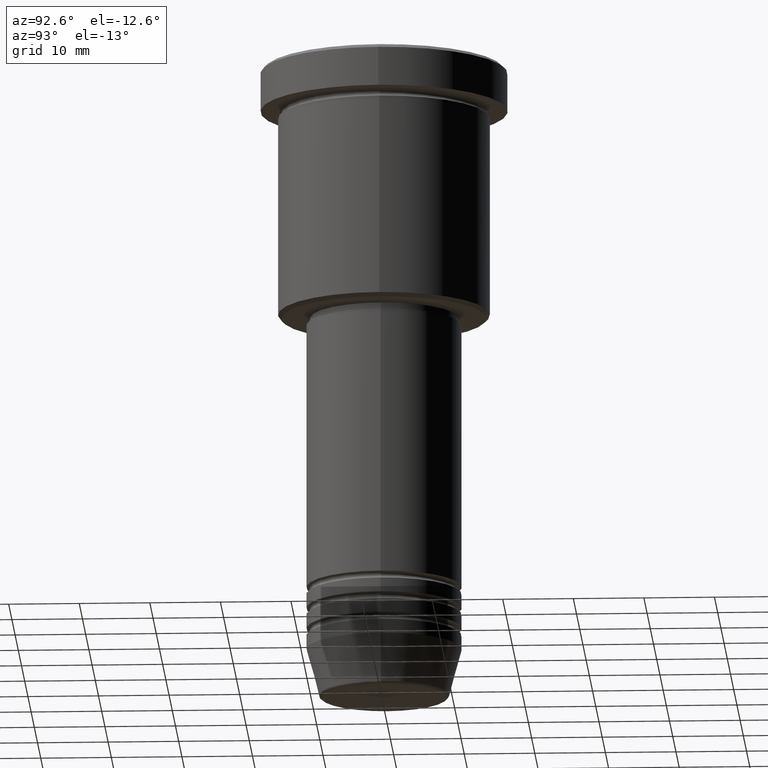
[diagram: clean part render]
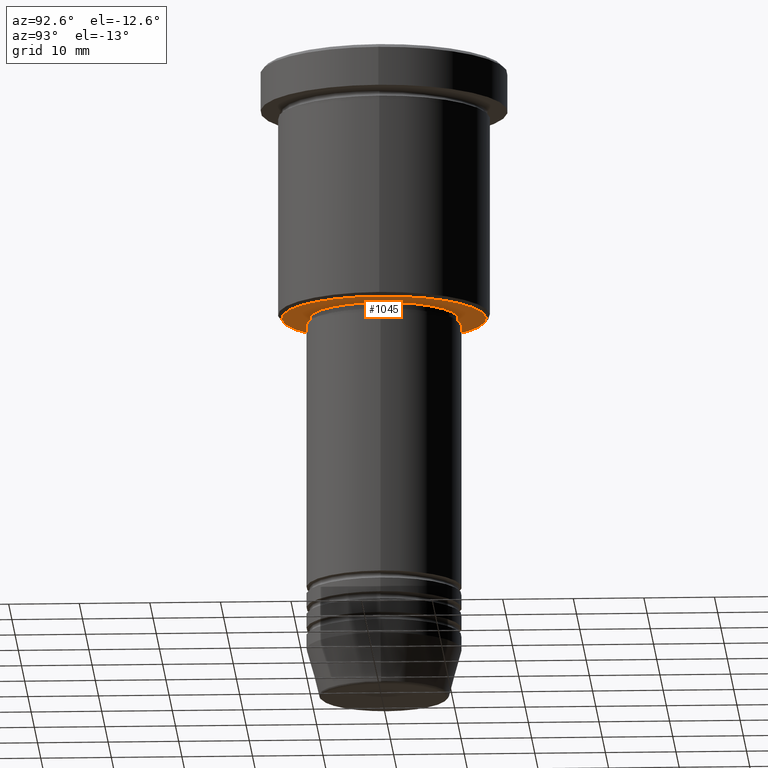
[diagram: same view with one face highlighted and labeled with its STEP entity id]
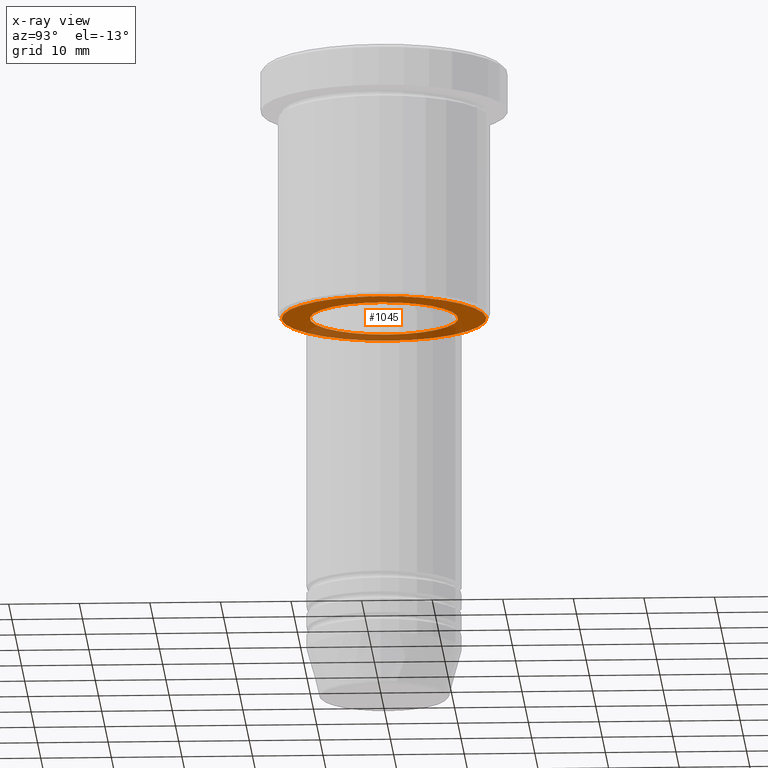
[diagram: x-ray of the same camera — body ghosted, the highlighted face saturated]
A machine part, auxiliary view. The second image highlights one B-rep face of the part: STEP entity #1045.
The next image is the same camera in x-ray: the body ghosted, the highlighted face saturated — about 31% of this face is hidden behind the body in this view.
In plain terms, the highlighted planar face has unit normal (0, 0, -1).
Its self-contained STEP definition (entity closure, byte-faithful):
#21 = CARTESIAN_POINT ( 'NONE',  ( 0.000000000000000000, 0.000000000000000000, -35.99999999999999289 ) ) ;
#43 = DIRECTION ( 'NONE',  ( -0.000000000000000000, -0.000000000000000000, 1.000000000000000000 ) ) ;
#123 = DIRECTION ( 'NONE',  ( 1.000000000000000000, 0.000000000000000000, 0.000000000000000000 ) ) ;
#198 = CIRCLE ( 'NONE', #537, 14.50000000000001066 ) ;
#264 = EDGE_LOOP ( 'NONE', ( #875, #769 ) ) ;
#265 = DIRECTION ( 'NONE',  ( -1.000000000000000000, 0.000000000000000000, -0.000000000000000000 ) ) ;
#275 = PLANE ( 'NONE',  #319 ) ;
#319 = AXIS2_PLACEMENT_3D ( 'NONE', #996, #359, #265 ) ;
#344 = EDGE_LOOP ( 'NONE', ( #686, #376 ) ) ;
#359 = DIRECTION ( 'NONE',  ( 0.000000000000000000, 0.000000000000000000, -1.000000000000000000 ) ) ;
#376 = ORIENTED_EDGE ( 'NONE', *, *, #405, .T. ) ;
#378 = CARTESIAN_POINT ( 'NONE',  ( 10.49999999999999822, 0.000000000000000000, -35.99999999999999289 ) ) ;
#405 = EDGE_CURVE ( 'NONE', #1029, #974, #555, .T. ) ;
#411 = EDGE_CURVE ( 'NONE', #974, #1029, #198, .T. ) ;
#455 = FACE_OUTER_BOUND ( 'NONE', #344, .T. ) ;
#509 = CIRCLE ( 'NONE', #724, 10.49999999999999822 ) ;
#525 = AXIS2_PLACEMENT_3D ( 'NONE', #650, #43, #123 ) ;
#537 = AXIS2_PLACEMENT_3D ( 'NONE', #21, #564, #954 ) ;
#555 = CIRCLE ( 'NONE', #946, 14.50000000000001066 ) ;
#560 = CARTESIAN_POINT ( 'NONE',  ( 0.000000000000000000, 0.000000000000000000, -35.99999999999999289 ) ) ;
#564 = DIRECTION ( 'NONE',  ( 0.000000000000000000, 0.000000000000000000, -1.000000000000000000 ) ) ;
#650 = CARTESIAN_POINT ( 'NONE',  ( 0.000000000000000000, 0.000000000000000000, -35.99999999999999289 ) ) ;
#669 = VERTEX_POINT ( 'NONE', #986 ) ;
#686 = ORIENTED_EDGE ( 'NONE', *, *, #411, .T. ) ;
#703 = CIRCLE ( 'NONE', #525, 10.49999999999999822 ) ;
#724 = AXIS2_PLACEMENT_3D ( 'NONE', #560, #952, #760 ) ;
#729 = FACE_BOUND ( 'NONE', #264, .T. ) ;
#743 = CARTESIAN_POINT ( 'NONE',  ( 0.000000000000000000, 0.000000000000000000, -35.99999999999999289 ) ) ;
#760 = DIRECTION ( 'NONE',  ( 1.000000000000000000, 0.000000000000000000, 0.000000000000000000 ) ) ;
#767 = VERTEX_POINT ( 'NONE', #378 ) ;
#769 = ORIENTED_EDGE ( 'NONE', *, *, #1139, .T. ) ;
#875 = ORIENTED_EDGE ( 'NONE', *, *, #1131, .T. ) ;
#883 = CARTESIAN_POINT ( 'NONE',  ( 14.50000000000001066, 0.000000000000000000, -35.99999999999999289 ) ) ;
#938 = CARTESIAN_POINT ( 'NONE',  ( -14.50000000000001066, 1.806354028742346591E-15, -35.99999999999999289 ) ) ;
#946 = AXIS2_PLACEMENT_3D ( 'NONE', #743, #1025, #1042 ) ;
#952 = DIRECTION ( 'NONE',  ( -0.000000000000000000, -0.000000000000000000, 1.000000000000000000 ) ) ;
#954 = DIRECTION ( 'NONE',  ( -1.000000000000000000, 0.000000000000000000, 0.000000000000000000 ) ) ;
#974 = VERTEX_POINT ( 'NONE', #883 ) ;
#986 = CARTESIAN_POINT ( 'NONE',  ( -10.49999999999999822, 1.285879139104720633E-15, -35.99999999999999289 ) ) ;
#996 = CARTESIAN_POINT ( 'NONE',  ( 0.000000000000000000, 15.00000000000000000, -35.99999999999999289 ) ) ;
#1025 = DIRECTION ( 'NONE',  ( 0.000000000000000000, 0.000000000000000000, -1.000000000000000000 ) ) ;
#1029 = VERTEX_POINT ( 'NONE', #938 ) ;
#1042 = DIRECTION ( 'NONE',  ( -1.000000000000000000, 0.000000000000000000, 0.000000000000000000 ) ) ;
#1045 = ADVANCED_FACE ( 'NONE', ( #455, #729 ), #275, .T. ) ;
#1131 = EDGE_CURVE ( 'NONE', #767, #669, #509, .T. ) ;
#1139 = EDGE_CURVE ( 'NONE', #669, #767, #703, .T. ) ;